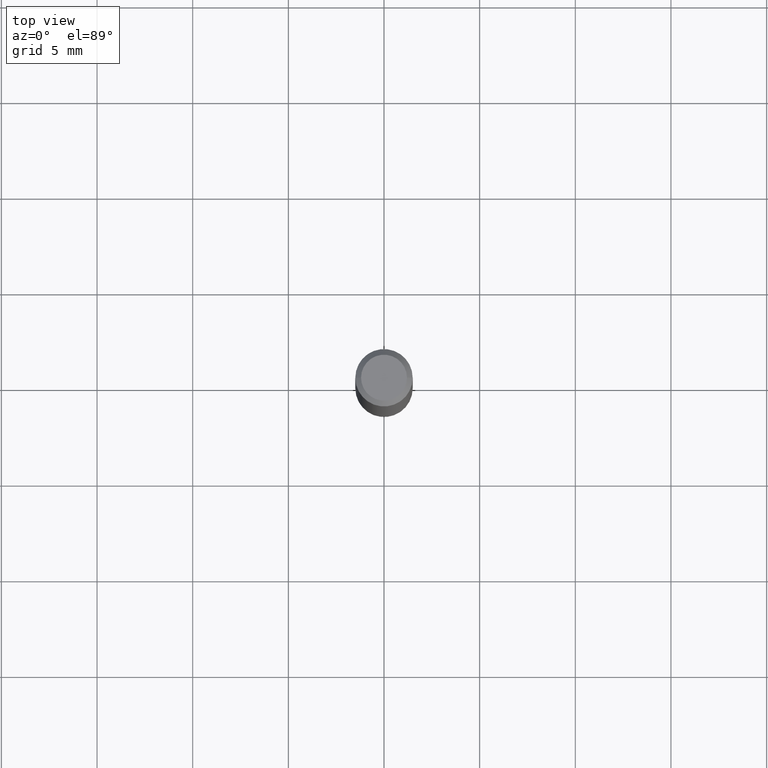
[diagram: clean part render]
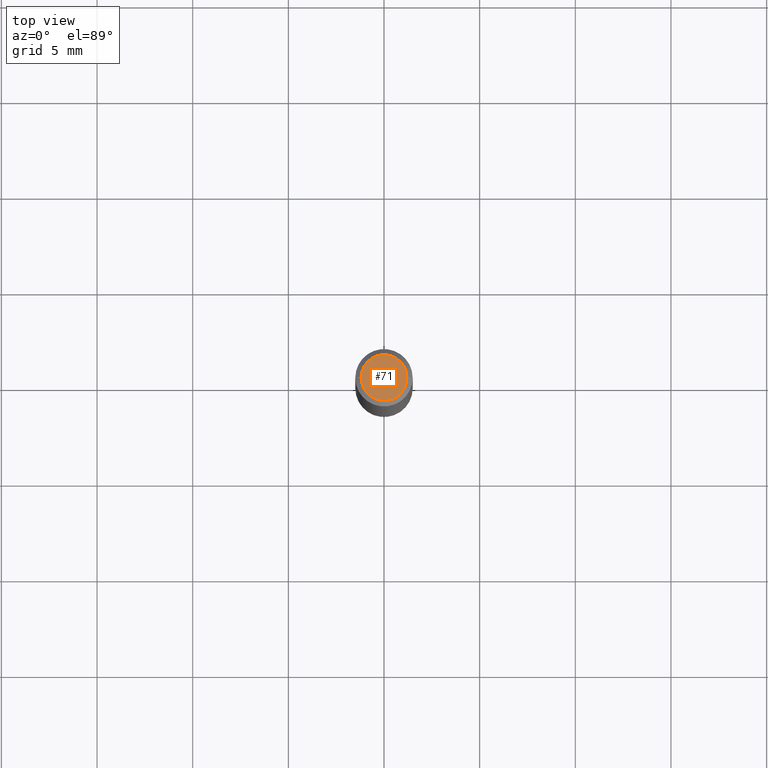
[diagram: same view with one face highlighted and labeled with its STEP entity id]
A machine part, top view. The second image highlights one B-rep face of the part: STEP entity #71.
In plain terms, the highlighted planar face has unit normal (0, -0, -1).
Its self-contained STEP definition (entity closure, byte-faithful):
#16 = ORIENTED_EDGE ( 'NONE', *, *, #458, .T. ) ;
#71 = ADVANCED_FACE ( 'NONE', ( #158 ), #451, .F. ) ;
#81 = CIRCLE ( 'NONE', #370, 0.04724000000000000421 ) ;
#98 = DIRECTION ( 'NONE',  ( -2.445468806185136597E-29, 3.491481338843145583E-15, 1.000000000000000000 ) ) ;
#139 = CIRCLE ( 'NONE', #161, 0.04724000000000000421 ) ;
#158 = FACE_OUTER_BOUND ( 'NONE', #355, .T. ) ;
#159 = DIRECTION ( 'NONE',  ( -1.000000000000000000, 6.982962677686265922E-15, -4.876176775795935793E-29 ) ) ;
#161 = AXIS2_PLACEMENT_3D ( 'NONE', #249, #98, #253 ) ;
#197 = CARTESIAN_POINT ( 'NONE',  ( 4.132873053354867254E-48, -5.900647395337818946E-34, -1.690012582823346072E-19 ) ) ;
#211 = VERTEX_POINT ( 'NONE', #264 ) ;
#213 = AXIS2_PLACEMENT_3D ( 'NONE', #197, #419, #159 ) ;
#237 = CARTESIAN_POINT ( 'NONE',  ( 0.04724000000000000421, -3.852183633974369345E-16, -3.380025165621689721E-19 ) ) ;
#249 = CARTESIAN_POINT ( 'NONE',  ( 8.265746106709734507E-48, -1.180129479067563789E-33, -3.380025165646692144E-19 ) ) ;
#253 = DIRECTION ( 'NONE',  ( 1.000000000000000000, -6.982962677686266711E-15, 4.876185090822587894E-29 ) ) ;
#264 = CARTESIAN_POINT ( 'NONE',  ( -0.04724000000000000421, 3.504923541997677355E-16, -3.380025165670481712E-19 ) ) ;
#274 = EDGE_CURVE ( 'NONE', #211, #321, #81, .T. ) ;
#311 = CARTESIAN_POINT ( 'NONE',  ( 8.265746106709734507E-48, -1.180129479067563789E-33, -3.380025165646692144E-19 ) ) ;
#321 = VERTEX_POINT ( 'NONE', #237 ) ;
#328 = ORIENTED_EDGE ( 'NONE', *, *, #274, .T. ) ;
#351 = DIRECTION ( 'NONE',  ( -2.445468806185136597E-29, 3.491481338843145583E-15, 1.000000000000000000 ) ) ;
#355 = EDGE_LOOP ( 'NONE', ( #328, #16 ) ) ;
#370 = AXIS2_PLACEMENT_3D ( 'NONE', #311, #351, #459 ) ;
#419 = DIRECTION ( 'NONE',  ( 2.438088387897960049E-29, -3.491481338843145188E-15, -1.000000000000000000 ) ) ;
#451 = PLANE ( 'NONE',  #213 ) ;
#458 = EDGE_CURVE ( 'NONE', #321, #211, #139, .T. ) ;
#459 = DIRECTION ( 'NONE',  ( 1.000000000000000000, -6.982962677686266711E-15, 4.876185090822587894E-29 ) ) ;